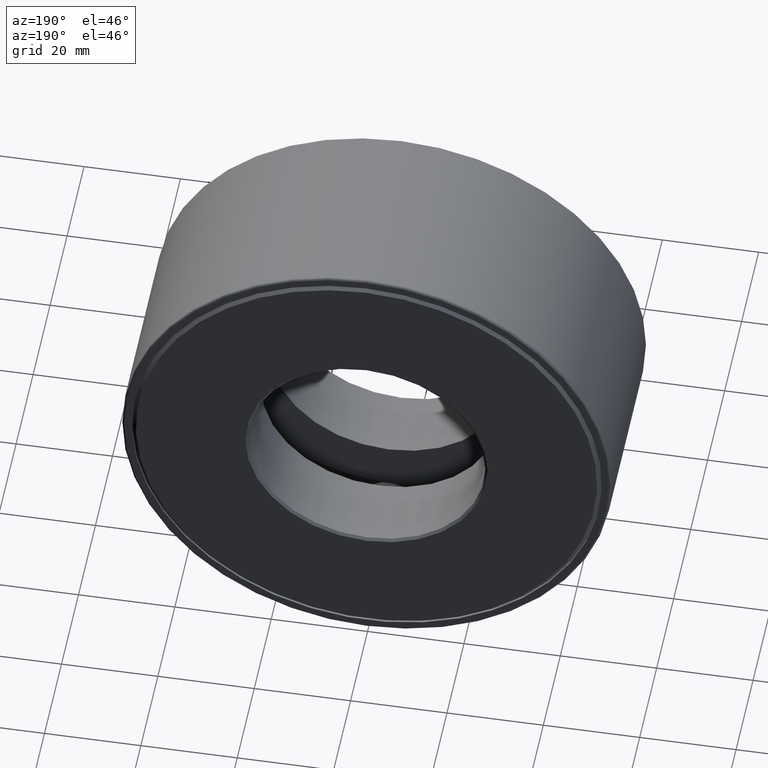
[diagram: clean part render]
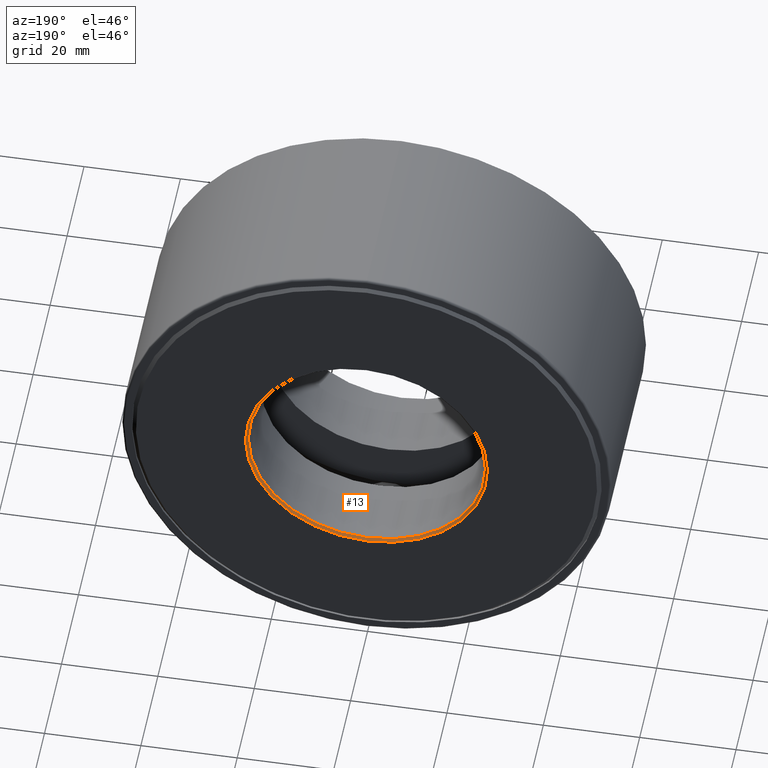
[diagram: same view with one face highlighted and labeled with its STEP entity id]
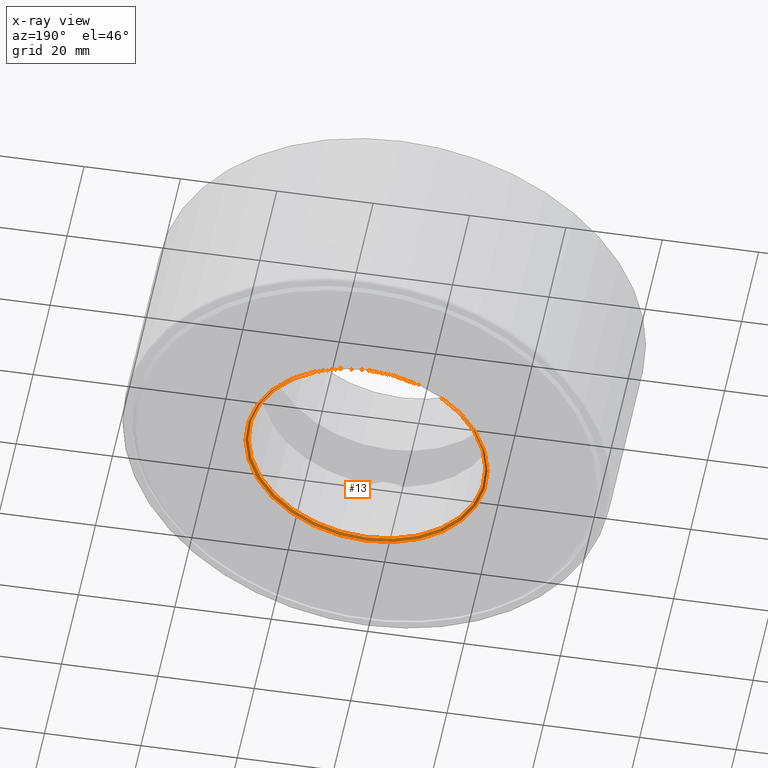
[diagram: x-ray of the same camera — body ghosted, the highlighted face saturated]
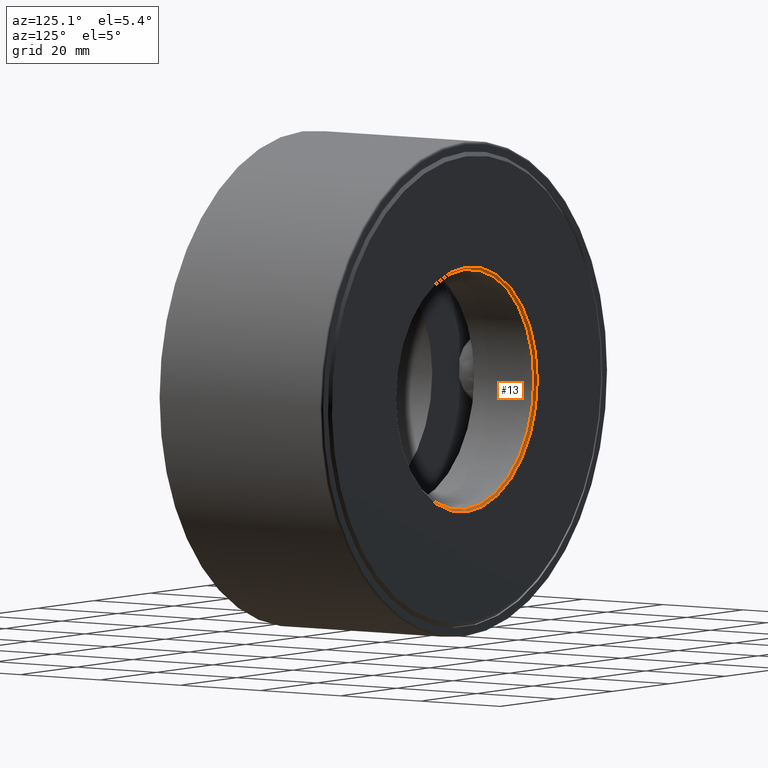
[diagram: same view with one face highlighted and labeled with its STEP entity id]
A machine part, auxiliary view. The second image highlights one B-rep face of the part: STEP entity #13.
The next image is the same camera in x-ray: the body ghosted, the highlighted face saturated — about 0% of this face is hidden behind the body in this view.
A second angle (auxiliary view) of the same face is appended — the face is thin or edge-on in the first view.
In plain terms, the highlighted conical surface has half-angle 45 deg.
Its self-contained STEP definition (entity closure, byte-faithful):
#13 = ADVANCED_FACE ( 'NONE', ( #478, #359 ), #71, .F. ) ;
#33 = EDGE_CURVE ( 'NONE', #286, #286, #171, .T. ) ;
#43 = DIRECTION ( 'NONE',  ( 0.0000000000000000000, 0.0000000000000000000, 1.000000000000000000 ) ) ;
#55 = CARTESIAN_POINT ( 'NONE',  ( 0.0000000000000000000, 1.604999999999998900, 0.9687500000000001100 ) ) ;
#71 = CONICAL_SURFACE ( 'NONE', #523, 0.9687500000000001100, 0.7853981633974311800 ) ;
#124 = CARTESIAN_POINT ( 'NONE',  ( 0.0000000000000000000, 1.604999999999998900, 0.0000000000000000000 ) ) ;
#171 = CIRCLE ( 'NONE', #568, 0.9887500000000003500 ) ;
#223 = CARTESIAN_POINT ( 'NONE',  ( 0.0000000000000000000, 1.624999999999999800, 0.0000000000000000000 ) ) ;
#254 = CIRCLE ( 'NONE', #256, 0.9687500000000001100 ) ;
#256 = AXIS2_PLACEMENT_3D ( 'NONE', #124, #588, #437 ) ;
#268 = ORIENTED_EDGE ( 'NONE', *, *, #33, .T. ) ;
#269 = CARTESIAN_POINT ( 'NONE',  ( 0.0000000000000000000, 1.604999999999998900, 0.0000000000000000000 ) ) ;
#286 = VERTEX_POINT ( 'NONE', #558 ) ;
#307 = EDGE_LOOP ( 'NONE', ( #404 ) ) ;
#309 = DIRECTION ( 'NONE',  ( 0.0000000000000000000, 0.0000000000000000000, 1.000000000000000000 ) ) ;
#359 = FACE_BOUND ( 'NONE', #307, .T. ) ;
#404 = ORIENTED_EDGE ( 'NONE', *, *, #429, .F. ) ;
#429 = EDGE_CURVE ( 'NONE', #507, #507, #254, .T. ) ;
#437 = DIRECTION ( 'NONE',  ( 0.0000000000000000000, 0.0000000000000000000, 1.000000000000000000 ) ) ;
#451 = DIRECTION ( 'NONE',  ( -0.0000000000000000000, 1.000000000000000000, -0.0000000000000000000 ) ) ;
#478 = FACE_OUTER_BOUND ( 'NONE', #513, .T. ) ;
#507 = VERTEX_POINT ( 'NONE', #55 ) ;
#513 = EDGE_LOOP ( 'NONE', ( #268 ) ) ;
#523 = AXIS2_PLACEMENT_3D ( 'NONE', #269, #451, #43 ) ;
#555 = DIRECTION ( 'NONE',  ( -0.0000000000000000000, 1.000000000000000000, -0.0000000000000000000 ) ) ;
#558 = CARTESIAN_POINT ( 'NONE',  ( 0.0000000000000000000, 1.624999999999999800, 0.9887500000000003500 ) ) ;
#568 = AXIS2_PLACEMENT_3D ( 'NONE', #223, #555, #309 ) ;
#588 = DIRECTION ( 'NONE',  ( -0.0000000000000000000, 1.000000000000000000, -0.0000000000000000000 ) ) ;